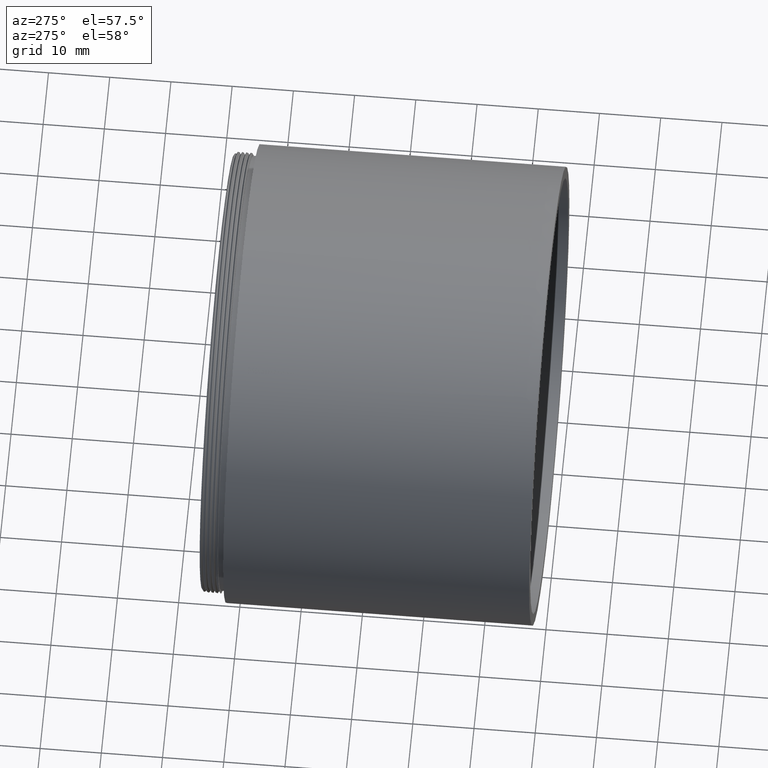
[diagram: clean part render]
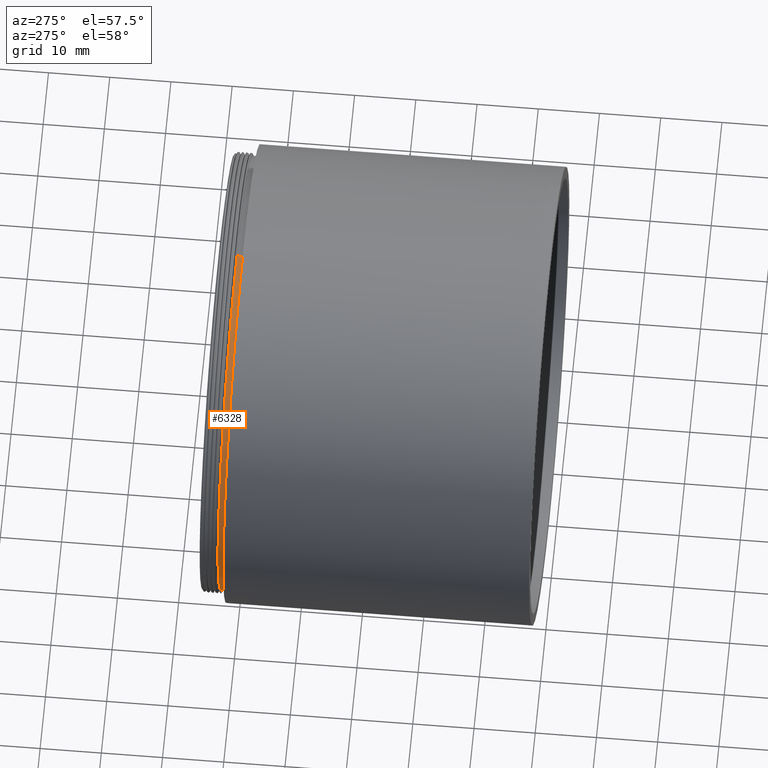
[diagram: same view with one face highlighted and labeled with its STEP entity id]
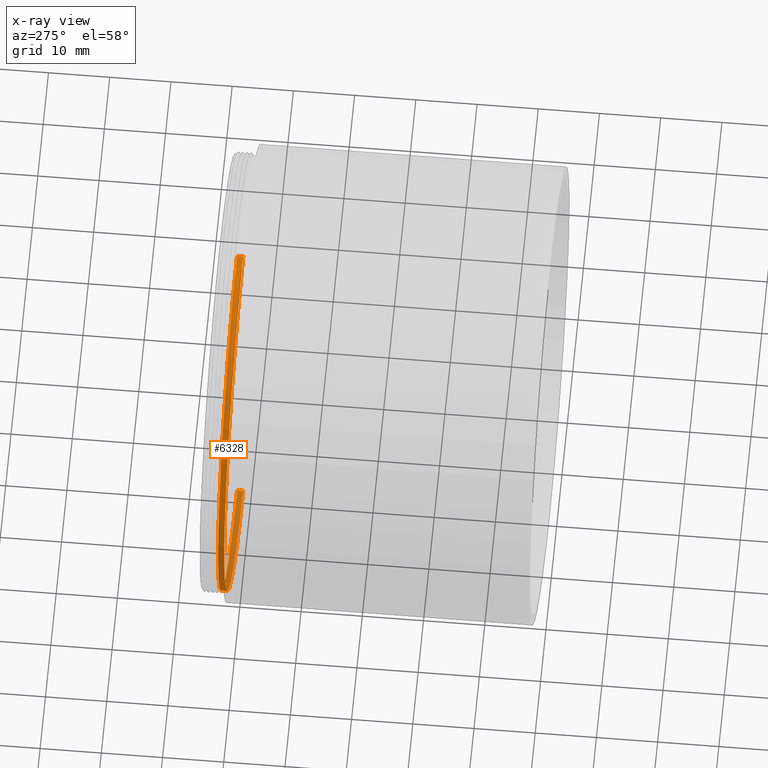
[diagram: x-ray of the same camera — body ghosted, the highlighted face saturated]
A machine part, auxiliary view. The second image highlights one B-rep face of the part: STEP entity #6328.
The next image is the same camera in x-ray: the body ghosted, the highlighted face saturated — about 22% of this face is hidden behind the body in this view.
In plain terms, the highlighted cylindrical surface (partial cylindrical patch) has radius 35.5 mm, axis along (-0, -1, -0).
Its self-contained STEP definition (entity closure, byte-faithful):
#357 = CARTESIAN_POINT ( 'NONE',  ( 4.347496136973114326E-15, 51.20194186206684606, 35.50000000000008527 ) ) ;
#748 = FACE_OUTER_BOUND ( 'NONE', #16420, .T. ) ;
#938 = VECTOR ( 'NONE', #1193, 1000.000000000000000 ) ;
#1193 = DIRECTION ( 'NONE',  ( -0.0000000000000000000, -1.000000000000000000, -0.0000000000000000000 ) ) ;
#1631 = DIRECTION ( 'NONE',  ( -0.0000000000000000000, -1.000000000000000000, -0.0000000000000000000 ) ) ;
#1678 = VERTEX_POINT ( 'NONE', #11139 ) ;
#3183 = ORIENTED_EDGE ( 'NONE', *, *, #9985, .T. ) ;
#3542 = DIRECTION ( 'NONE',  ( -0.0000000000000000000, -1.000000000000000000, -0.0000000000000000000 ) ) ;
#3773 = AXIS2_PLACEMENT_3D ( 'NONE', #5719, #10845, #14818 ) ;
#5126 = VECTOR ( 'NONE', #11491, 1000.000000000000000 ) ;
#5177 = CARTESIAN_POINT ( 'NONE',  ( 0.0000000000000000000, 0.0000000000000000000, -35.50000000000008527 ) ) ;
#5337 = CARTESIAN_POINT ( 'NONE',  ( 0.0000000000000000000, 51.20194186206684606, -35.50000000000008527 ) ) ;
#5370 = CARTESIAN_POINT ( 'NONE',  ( 0.0000000000000000000, 51.20194186206684606, 0.0000000000000000000 ) ) ;
#5719 = CARTESIAN_POINT ( 'NONE',  ( 0.0000000000000000000, 52.20194186206699527, 0.0000000000000000000 ) ) ;
#5909 = VERTEX_POINT ( 'NONE', #15163 ) ;
#6328 = ADVANCED_FACE ( 'NONE', ( #748 ), #7093, .T. ) ;
#6358 = CARTESIAN_POINT ( 'NONE',  ( 4.347496136973114326E-15, 0.0000000000000000000, 35.50000000000008527 ) ) ;
#6711 = DIRECTION ( 'NONE',  ( 0.0000000000000000000, 0.0000000000000000000, -1.000000000000000000 ) ) ;
#7093 = CYLINDRICAL_SURFACE ( 'NONE', #8890, 35.50000000000008527 ) ;
#7474 = ORIENTED_EDGE ( 'NONE', *, *, #12618, .T. ) ;
#8890 = AXIS2_PLACEMENT_3D ( 'NONE', #12496, #3542, #16124 ) ;
#9985 = EDGE_CURVE ( 'NONE', #1678, #5909, #16171, .T. ) ;
#10845 = DIRECTION ( 'NONE',  ( -0.0000000000000000000, -1.000000000000000000, -0.0000000000000000000 ) ) ;
#11139 = CARTESIAN_POINT ( 'NONE',  ( 4.347496136973114326E-15, 52.20194186206699527, 35.50000000000008527 ) ) ;
#11491 = DIRECTION ( 'NONE',  ( -0.0000000000000000000, -1.000000000000000000, -0.0000000000000000000 ) ) ;
#11860 = VERTEX_POINT ( 'NONE', #5337 ) ;
#12140 = ORIENTED_EDGE ( 'NONE', *, *, #13396, .F. ) ;
#12274 = ORIENTED_EDGE ( 'NONE', *, *, #14914, .F. ) ;
#12496 = CARTESIAN_POINT ( 'NONE',  ( 0.0000000000000000000, 0.0000000000000000000, 0.0000000000000000000 ) ) ;
#12618 = EDGE_CURVE ( 'NONE', #5909, #11860, #12936, .T. ) ;
#12770 = LINE ( 'NONE', #6358, #5126 ) ;
#12936 = LINE ( 'NONE', #5177, #938 ) ;
#13396 = EDGE_CURVE ( 'NONE', #1678, #16266, #12770, .T. ) ;
#14818 = DIRECTION ( 'NONE',  ( 0.0000000000000000000, 0.0000000000000000000, -1.000000000000000000 ) ) ;
#14914 = EDGE_CURVE ( 'NONE', #16266, #11860, #16174, .T. ) ;
#15163 = CARTESIAN_POINT ( 'NONE',  ( 0.0000000000000000000, 52.20194186206699527, -35.50000000000008527 ) ) ;
#16124 = DIRECTION ( 'NONE',  ( 0.0000000000000000000, 0.0000000000000000000, -1.000000000000000000 ) ) ;
#16171 = CIRCLE ( 'NONE', #3773, 35.50000000000008527 ) ;
#16174 = CIRCLE ( 'NONE', #16457, 35.50000000000008527 ) ;
#16266 = VERTEX_POINT ( 'NONE', #357 ) ;
#16420 = EDGE_LOOP ( 'NONE', ( #12140, #3183, #7474, #12274 ) ) ;
#16457 = AXIS2_PLACEMENT_3D ( 'NONE', #5370, #1631, #6711 ) ;